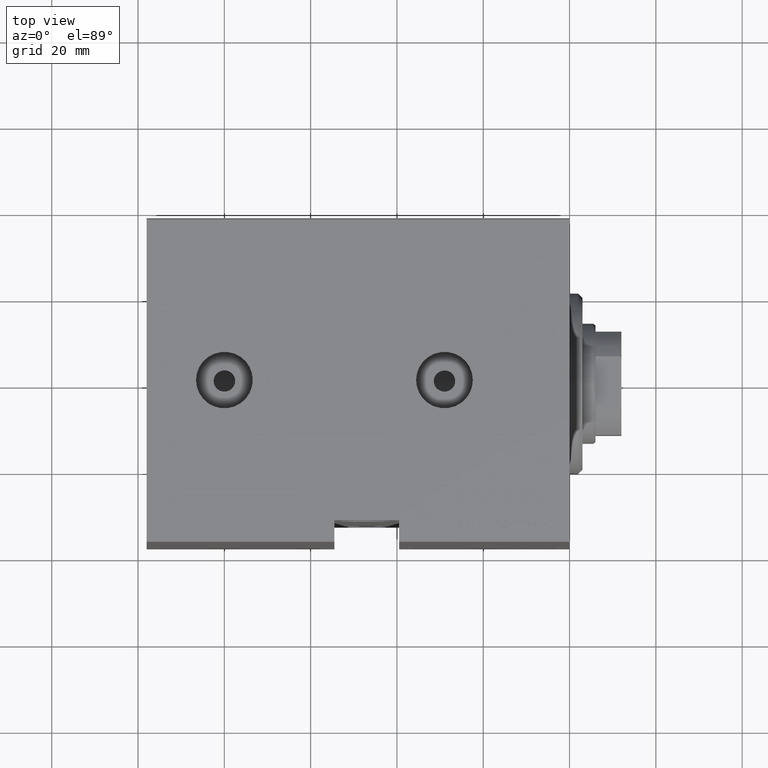
[diagram: clean part render]
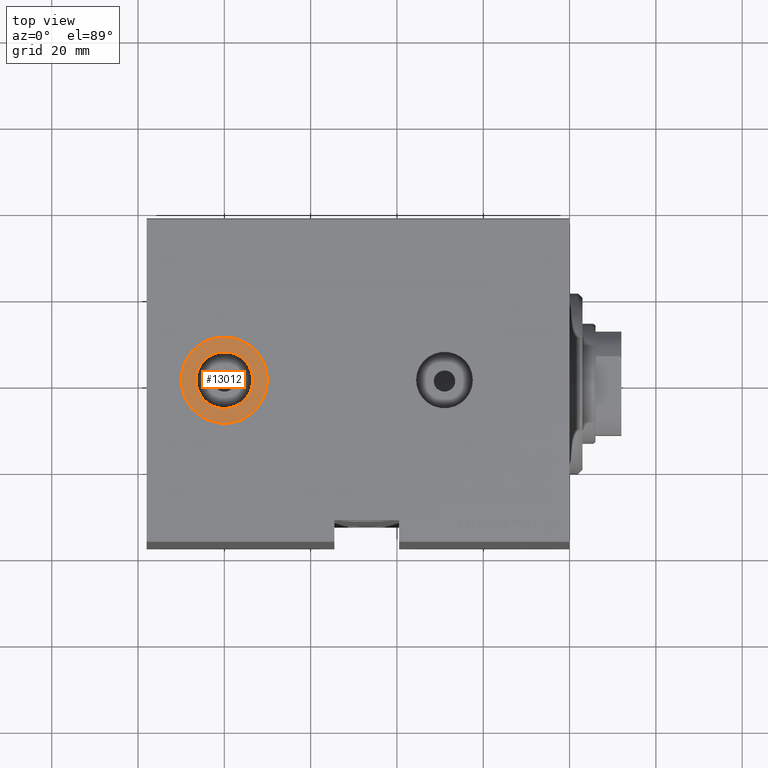
[diagram: same view with one face highlighted and labeled with its STEP entity id]
A machine part, top view. The second image highlights one B-rep face of the part: STEP entity #13012.
In plain terms, the highlighted planar face has unit normal (0, 0, 1).
Its self-contained STEP definition (entity closure, byte-faithful):
#358 = ORIENTED_EDGE ( 'NONE', *, *, #8019, .T. ) ;
#758 = EDGE_LOOP ( 'NONE', ( #358, #33299 ) ) ;
#818 = DIRECTION ( 'NONE',  ( 1.000000000000000000, 0.000000000000000000, 0.000000000000000000 ) ) ;
#1989 = CIRCLE ( 'NONE', #31169, 9.999999999999994671 ) ;
#2143 = CARTESIAN_POINT ( 'NONE',  ( 80.00000000000001421, -9.251858538542975377E-15, 49.90000000000000568 ) ) ;
#5019 = CARTESIAN_POINT ( 'NONE',  ( 80.00000000000001421, -9.251858538542975377E-15, 49.90000000000000568 ) ) ;
#5066 = CARTESIAN_POINT ( 'NONE',  ( 80.00000000000001421, -9.251858538542975377E-15, 49.90000000000000568 ) ) ;
#8019 = EDGE_CURVE ( 'NONE', #12346, #8697, #25454, .T. ) ;
#8697 = VERTEX_POINT ( 'NONE', #23196 ) ;
#9473 = CARTESIAN_POINT ( 'NONE',  ( 86.58000000000001251, -9.251858538542975377E-15, 49.90000000000000568 ) ) ;
#9478 = FACE_BOUND ( 'NONE', #34811, .T. ) ;
#9935 = EDGE_CURVE ( 'NONE', #8697, #12346, #1989, .T. ) ;
#12346 = VERTEX_POINT ( 'NONE', #33288 ) ;
#13012 = ADVANCED_FACE ( 'NONE', ( #9478, #43108 ), #22399, .T. ) ;
#15258 = DIRECTION ( 'NONE',  ( 0.000000000000000000, 0.000000000000000000, 1.000000000000000000 ) ) ;
#16172 = ORIENTED_EDGE ( 'NONE', *, *, #34980, .F. ) ;
#18947 = DIRECTION ( 'NONE',  ( 1.000000000000000000, 0.000000000000000000, 0.000000000000000000 ) ) ;
#19092 = DIRECTION ( 'NONE',  ( 0.000000000000000000, 0.000000000000000000, 1.000000000000000000 ) ) ;
#19621 = EDGE_CURVE ( 'NONE', #20010, #34023, #33801, .T. ) ;
#20010 = VERTEX_POINT ( 'NONE', #42381 ) ;
#21546 = DIRECTION ( 'NONE',  ( 1.000000000000000000, 0.000000000000000000, 0.000000000000000000 ) ) ;
#22399 = PLANE ( 'NONE',  #28410 ) ;
#22939 = DIRECTION ( 'NONE',  ( 0.000000000000000000, 0.000000000000000000, 1.000000000000000000 ) ) ;
#23196 = CARTESIAN_POINT ( 'NONE',  ( 70.00000000000001421, -8.027211739395623896E-15, 49.90000000000000568 ) ) ;
#24008 = CIRCLE ( 'NONE', #31126, 6.580000000000002736 ) ;
#24549 = AXIS2_PLACEMENT_3D ( 'NONE', #5019, #15258, #818 ) ;
#25032 = CARTESIAN_POINT ( 'NONE',  ( 80.00000000000001421, -9.251858538542975377E-15, 49.90000000000000568 ) ) ;
#25454 = CIRCLE ( 'NONE', #33973, 9.999999999999994671 ) ;
#28410 = AXIS2_PLACEMENT_3D ( 'NONE', #2143, #43330, #32422 ) ;
#31126 = AXIS2_PLACEMENT_3D ( 'NONE', #5066, #19092, #21546 ) ;
#31169 = AXIS2_PLACEMENT_3D ( 'NONE', #25032, #34399, #41067 ) ;
#31865 = ORIENTED_EDGE ( 'NONE', *, *, #19621, .F. ) ;
#32422 = DIRECTION ( 'NONE',  ( 1.000000000000000000, 0.000000000000000000, -0.000000000000000000 ) ) ;
#33288 = CARTESIAN_POINT ( 'NONE',  ( 90.00000000000001421, -9.251858538542975377E-15, 49.90000000000000568 ) ) ;
#33299 = ORIENTED_EDGE ( 'NONE', *, *, #9935, .T. ) ;
#33801 = CIRCLE ( 'NONE', #24549, 6.580000000000002736 ) ;
#33973 = AXIS2_PLACEMENT_3D ( 'NONE', #40290, #22939, #18947 ) ;
#34023 = VERTEX_POINT ( 'NONE', #9473 ) ;
#34399 = DIRECTION ( 'NONE',  ( 0.000000000000000000, 0.000000000000000000, 1.000000000000000000 ) ) ;
#34811 = EDGE_LOOP ( 'NONE', ( #16172, #31865 ) ) ;
#34980 = EDGE_CURVE ( 'NONE', #34023, #20010, #24008, .T. ) ;
#40290 = CARTESIAN_POINT ( 'NONE',  ( 80.00000000000001421, -9.251858538542975377E-15, 49.90000000000000568 ) ) ;
#41067 = DIRECTION ( 'NONE',  ( 1.000000000000000000, 0.000000000000000000, 0.000000000000000000 ) ) ;
#42381 = CARTESIAN_POINT ( 'NONE',  ( 73.42000000000001592, -8.446040944704016336E-15, 49.90000000000000568 ) ) ;
#43108 = FACE_OUTER_BOUND ( 'NONE', #758, .T. ) ;
#43330 = DIRECTION ( 'NONE',  ( 0.000000000000000000, 0.000000000000000000, 1.000000000000000000 ) ) ;